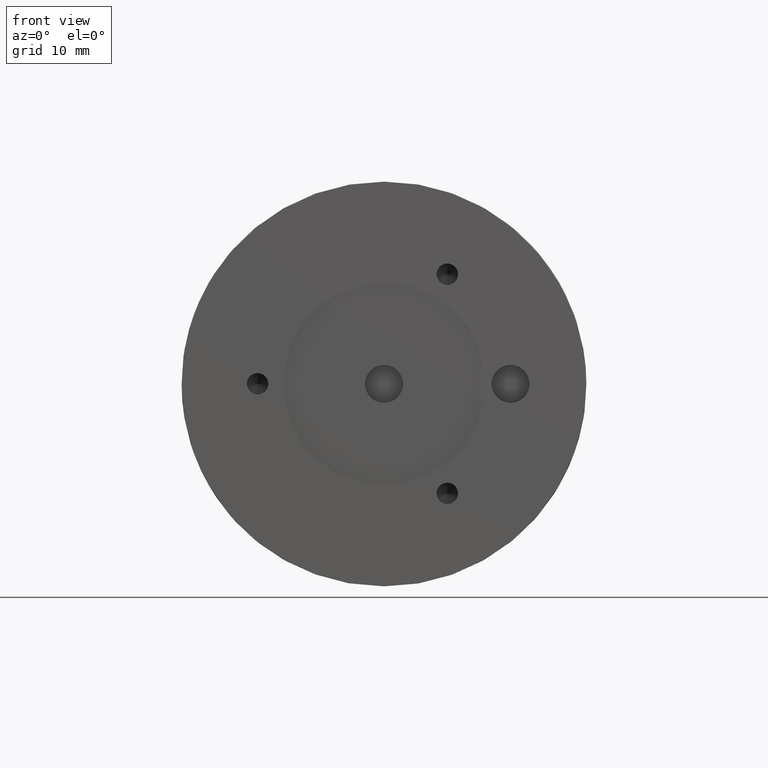
[diagram: clean part render]
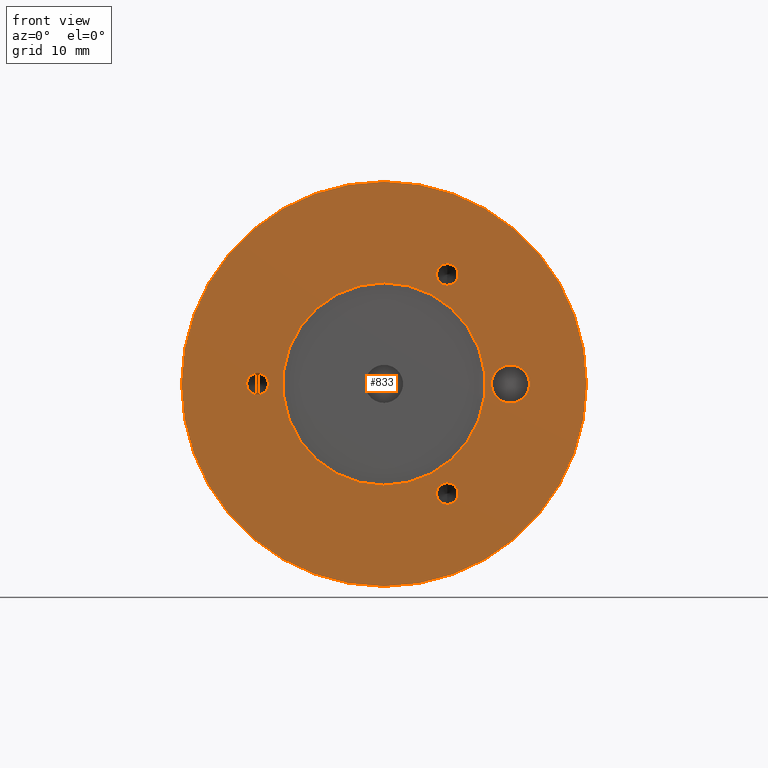
[diagram: same view with one face highlighted and labeled with its STEP entity id]
A machine part, front view. The second image highlights one B-rep face of the part: STEP entity #833.
In plain terms, the highlighted planar face has unit normal (0, 1, 0).
Its self-contained STEP definition (entity closure, byte-faithful):
#2 = AXIS2_PLACEMENT_3D ( 'NONE', #530, #66, #539 ) ;
#5 = DIRECTION ( 'NONE',  ( -0.0000000000000000000, -1.000000000000000000, -0.0000000000000000000 ) ) ;
#28 = CIRCLE ( 'NONE', #123, 1.352549999999999253 ) ;
#33 = AXIS2_PLACEMENT_3D ( 'NONE', #267, #72, #415 ) ;
#45 = EDGE_CURVE ( 'NONE', #529, #218, #180, .T. ) ;
#49 = DIRECTION ( 'NONE',  ( 0.0000000000000000000, 1.000000000000000000, 0.0000000000000000000 ) ) ;
#50 = EDGE_CURVE ( 'NONE', #465, #522, #77, .T. ) ;
#51 = EDGE_LOOP ( 'NONE', ( #577, #439 ) ) ;
#56 = CARTESIAN_POINT ( 'NONE',  ( -2.642881778843148241E-15, 0.0000000000000000000, 0.0000000000000000000 ) ) ;
#66 = DIRECTION ( 'NONE',  ( 0.0000000000000000000, 1.000000000000000000, 0.0000000000000000000 ) ) ;
#69 = DIRECTION ( 'NONE',  ( 0.0000000000000000000, 0.0000000000000000000, -1.000000000000000000 ) ) ;
#72 = DIRECTION ( 'NONE',  ( -0.0000000000000000000, -1.000000000000000000, -0.0000000000000000000 ) ) ;
#73 = ORIENTED_EDGE ( 'NONE', *, *, #596, .F. ) ;
#74 = ORIENTED_EDGE ( 'NONE', *, *, #289, .F. ) ;
#77 = CIRCLE ( 'NONE', #358, 12.69999999999999929 ) ;
#84 = CIRCLE ( 'NONE', #177, 1.352549999999999253 ) ;
#89 = ORIENTED_EDGE ( 'NONE', *, *, #50, .F. ) ;
#95 = DIRECTION ( 'NONE',  ( 0.0000000000000000000, 0.0000000000000000000, -1.000000000000000000 ) ) ;
#103 = AXIS2_PLACEMENT_3D ( 'NONE', #728, #49, #237 ) ;
#121 = CIRCLE ( 'NONE', #664, 1.352549999999999253 ) ;
#123 = AXIS2_PLACEMENT_3D ( 'NONE', #723, #788, #856 ) ;
#127 = DIRECTION ( 'NONE',  ( 0.0000000000000000000, 1.000000000000000000, 0.0000000000000000000 ) ) ;
#128 = CARTESIAN_POINT ( 'NONE',  ( 7.937499999999965361, -4.588139233005562251E-17, 13.74815328507798640 ) ) ;
#129 = CARTESIAN_POINT ( 'NONE',  ( 3.110602869834276865E-15, 0.0000000000000000000, 25.39999999999999858 ) ) ;
#131 = PLANE ( 'NONE',  #2 ) ;
#144 = FACE_BOUND ( 'NONE', #569, .T. ) ;
#148 = VERTEX_POINT ( 'NONE', #801 ) ;
#163 = DIRECTION ( 'NONE',  ( -0.0000000000000000000, -1.000000000000000000, -0.0000000000000000000 ) ) ;
#176 = DIRECTION ( 'NONE',  ( 0.0000000000000000000, 0.0000000000000000000, -1.000000000000000000 ) ) ;
#177 = AXIS2_PLACEMENT_3D ( 'NONE', #717, #163, #95 ) ;
#180 = CIRCLE ( 'NONE', #103, 25.39999999999999858 ) ;
#193 = CARTESIAN_POINT ( 'NONE',  ( 15.87500000000000000, 7.654042494671999858E-19, -2.387500000000000622 ) ) ;
#196 = CARTESIAN_POINT ( 'NONE',  ( -1.087580343926009808E-15, 0.0000000000000000000, 12.69999999999999929 ) ) ;
#200 = CIRCLE ( 'NONE', #429, 12.69999999999999929 ) ;
#203 = AXIS2_PLACEMENT_3D ( 'NONE', #692, #747, #805 ) ;
#207 = VERTEX_POINT ( 'NONE', #806 ) ;
#218 = VERTEX_POINT ( 'NONE', #129 ) ;
#224 = DIRECTION ( 'NONE',  ( 0.0000000000000000000, 0.0000000000000000000, -1.000000000000000000 ) ) ;
#225 = FACE_BOUND ( 'NONE', #663, .T. ) ;
#231 = EDGE_LOOP ( 'NONE', ( #853, #73 ) ) ;
#237 = DIRECTION ( 'NONE',  ( 0.0000000000000000000, 0.0000000000000000000, 1.000000000000000000 ) ) ;
#245 = CARTESIAN_POINT ( 'NONE',  ( -2.642881778843148241E-15, 0.0000000000000000000, 0.0000000000000000000 ) ) ;
#267 = CARTESIAN_POINT ( 'NONE',  ( 15.87500000000000000, 7.654042494671999858E-19, 0.0000000000000000000 ) ) ;
#274 = AXIS2_PLACEMENT_3D ( 'NONE', #318, #814, #472 ) ;
#285 = EDGE_LOOP ( 'NONE', ( #544, #674 ) ) ;
#289 = EDGE_CURVE ( 'NONE', #522, #465, #200, .T. ) ;
#291 = CIRCLE ( 'NONE', #203, 1.352549999999999253 ) ;
#318 = CARTESIAN_POINT ( 'NONE',  ( 15.87500000000000000, 7.654042494671999858E-19, 0.0000000000000000000 ) ) ;
#321 = DIRECTION ( 'NONE',  ( -0.0000000000000000000, -1.000000000000000000, -0.0000000000000000000 ) ) ;
#331 = CARTESIAN_POINT ( 'NONE',  ( 7.937499999999965361, -4.588139233005562251E-17, 13.74815328507798640 ) ) ;
#341 = ORIENTED_EDGE ( 'NONE', *, *, #880, .F. ) ;
#343 = CARTESIAN_POINT ( 'NONE',  ( -15.87500000000000000, -4.588139233005562251E-17, 0.0000000000000000000 ) ) ;
#346 = CIRCLE ( 'NONE', #33, 2.387500000000000622 ) ;
#358 = AXIS2_PLACEMENT_3D ( 'NONE', #56, #443, #224 ) ;
#379 = FACE_BOUND ( 'NONE', #51, .T. ) ;
#393 = DIRECTION ( 'NONE',  ( 0.0000000000000000000, 0.0000000000000000000, -1.000000000000000000 ) ) ;
#403 = VERTEX_POINT ( 'NONE', #757 ) ;
#405 = DIRECTION ( 'NONE',  ( -0.0000000000000000000, -1.000000000000000000, -0.0000000000000000000 ) ) ;
#412 = EDGE_LOOP ( 'NONE', ( #341, #510 ) ) ;
#415 = DIRECTION ( 'NONE',  ( 0.0000000000000000000, 0.0000000000000000000, -1.000000000000000000 ) ) ;
#425 = VERTEX_POINT ( 'NONE', #553 ) ;
#429 = AXIS2_PLACEMENT_3D ( 'NONE', #245, #456, #176 ) ;
#439 = ORIENTED_EDGE ( 'NONE', *, *, #720, .F. ) ;
#443 = DIRECTION ( 'NONE',  ( 0.0000000000000000000, -1.000000000000000000, 0.0000000000000000000 ) ) ;
#447 = ORIENTED_EDGE ( 'NONE', *, *, #846, .F. ) ;
#450 = EDGE_CURVE ( 'NONE', #207, #477, #346, .T. ) ;
#456 = DIRECTION ( 'NONE',  ( 0.0000000000000000000, -1.000000000000000000, 0.0000000000000000000 ) ) ;
#464 = AXIS2_PLACEMENT_3D ( 'NONE', #128, #405, #69 ) ;
#465 = VERTEX_POINT ( 'NONE', #196 ) ;
#472 = DIRECTION ( 'NONE',  ( 0.0000000000000000000, 0.0000000000000000000, -1.000000000000000000 ) ) ;
#475 = CARTESIAN_POINT ( 'NONE',  ( 7.937499999999965361, -4.588139233005562251E-17, 15.10070328507798543 ) ) ;
#477 = VERTEX_POINT ( 'NONE', #193 ) ;
#510 = ORIENTED_EDGE ( 'NONE', *, *, #842, .F. ) ;
#522 = VERTEX_POINT ( 'NONE', #561 ) ;
#525 = DIRECTION ( 'NONE',  ( 0.0000000000000000000, 0.0000000000000000000, 1.000000000000000000 ) ) ;
#529 = VERTEX_POINT ( 'NONE', #778 ) ;
#530 = CARTESIAN_POINT ( 'NONE',  ( 0.0000000000000000000, 0.0000000000000000000, 0.0000000000000000000 ) ) ;
#534 = CARTESIAN_POINT ( 'NONE',  ( -15.87500000000000000, -4.588139233005562251E-17, -1.352549999999999253 ) ) ;
#539 = DIRECTION ( 'NONE',  ( 0.0000000000000000000, -0.0000000000000000000, 1.000000000000000000 ) ) ;
#544 = ORIENTED_EDGE ( 'NONE', *, *, #894, .F. ) ;
#550 = FACE_OUTER_BOUND ( 'NONE', #231, .T. ) ;
#553 = CARTESIAN_POINT ( 'NONE',  ( 7.937499999999965361, -4.588139233005562251E-17, -15.10070328507798543 ) ) ;
#561 = CARTESIAN_POINT ( 'NONE',  ( -2.642881778843148241E-15, 0.0000000000000000000, -12.69999999999999929 ) ) ;
#568 = FACE_BOUND ( 'NONE', #412, .T. ) ;
#569 = EDGE_LOOP ( 'NONE', ( #447, #615 ) ) ;
#577 = ORIENTED_EDGE ( 'NONE', *, *, #744, .F. ) ;
#596 = EDGE_CURVE ( 'NONE', #218, #529, #779, .T. ) ;
#615 = ORIENTED_EDGE ( 'NONE', *, *, #450, .F. ) ;
#626 = DIRECTION ( 'NONE',  ( 0.0000000000000000000, 0.0000000000000000000, -1.000000000000000000 ) ) ;
#648 = AXIS2_PLACEMENT_3D ( 'NONE', #331, #321, #393 ) ;
#663 = EDGE_LOOP ( 'NONE', ( #74, #89 ) ) ;
#664 = AXIS2_PLACEMENT_3D ( 'NONE', #343, #5, #626 ) ;
#674 = ORIENTED_EDGE ( 'NONE', *, *, #855, .F. ) ;
#683 = CARTESIAN_POINT ( 'NONE',  ( 0.0000000000000000000, 0.0000000000000000000, 0.0000000000000000000 ) ) ;
#692 = CARTESIAN_POINT ( 'NONE',  ( -15.87500000000000000, -4.588139233005562251E-17, 0.0000000000000000000 ) ) ;
#699 = VERTEX_POINT ( 'NONE', #475 ) ;
#717 = CARTESIAN_POINT ( 'NONE',  ( 7.937499999999965361, -4.588139233005562251E-17, -13.74815328507798640 ) ) ;
#720 = EDGE_CURVE ( 'NONE', #875, #425, #84, .T. ) ;
#723 = CARTESIAN_POINT ( 'NONE',  ( 7.937499999999965361, -4.588139233005562251E-17, -13.74815328507798640 ) ) ;
#726 = CIRCLE ( 'NONE', #274, 2.387500000000000622 ) ;
#728 = CARTESIAN_POINT ( 'NONE',  ( 0.0000000000000000000, 0.0000000000000000000, 0.0000000000000000000 ) ) ;
#744 = EDGE_CURVE ( 'NONE', #425, #875, #28, .T. ) ;
#747 = DIRECTION ( 'NONE',  ( -0.0000000000000000000, -1.000000000000000000, -0.0000000000000000000 ) ) ;
#757 = CARTESIAN_POINT ( 'NONE',  ( 7.937499999999965361, -4.588139233005562251E-17, 12.39560328507798737 ) ) ;
#771 = CIRCLE ( 'NONE', #648, 1.352549999999999253 ) ;
#778 = CARTESIAN_POINT ( 'NONE',  ( 0.0000000000000000000, 0.0000000000000000000, -25.39999999999999858 ) ) ;
#779 = CIRCLE ( 'NONE', #867, 25.39999999999999858 ) ;
#788 = DIRECTION ( 'NONE',  ( -0.0000000000000000000, -1.000000000000000000, -0.0000000000000000000 ) ) ;
#801 = CARTESIAN_POINT ( 'NONE',  ( -15.87500000000000000, -4.588139233005562251E-17, 1.352549999999999253 ) ) ;
#805 = DIRECTION ( 'NONE',  ( 0.0000000000000000000, 0.0000000000000000000, -1.000000000000000000 ) ) ;
#806 = CARTESIAN_POINT ( 'NONE',  ( 15.87500000000000000, 7.654042494671999858E-19, 2.387500000000000622 ) ) ;
#810 = CARTESIAN_POINT ( 'NONE',  ( 7.937499999999965361, -4.588139233005562251E-17, -12.39560328507798737 ) ) ;
#814 = DIRECTION ( 'NONE',  ( -0.0000000000000000000, -1.000000000000000000, -0.0000000000000000000 ) ) ;
#833 = ADVANCED_FACE ( 'NONE', ( #225, #568, #379, #843, #144, #550 ), #131, .F. ) ;
#842 = EDGE_CURVE ( 'NONE', #699, #403, #851, .T. ) ;
#843 = FACE_BOUND ( 'NONE', #285, .T. ) ;
#846 = EDGE_CURVE ( 'NONE', #477, #207, #726, .T. ) ;
#851 = CIRCLE ( 'NONE', #464, 1.352549999999999253 ) ;
#853 = ORIENTED_EDGE ( 'NONE', *, *, #45, .F. ) ;
#855 = EDGE_CURVE ( 'NONE', #148, #889, #291, .T. ) ;
#856 = DIRECTION ( 'NONE',  ( 0.0000000000000000000, 0.0000000000000000000, -1.000000000000000000 ) ) ;
#867 = AXIS2_PLACEMENT_3D ( 'NONE', #683, #127, #525 ) ;
#875 = VERTEX_POINT ( 'NONE', #810 ) ;
#880 = EDGE_CURVE ( 'NONE', #403, #699, #771, .T. ) ;
#889 = VERTEX_POINT ( 'NONE', #534 ) ;
#894 = EDGE_CURVE ( 'NONE', #889, #148, #121, .T. ) ;